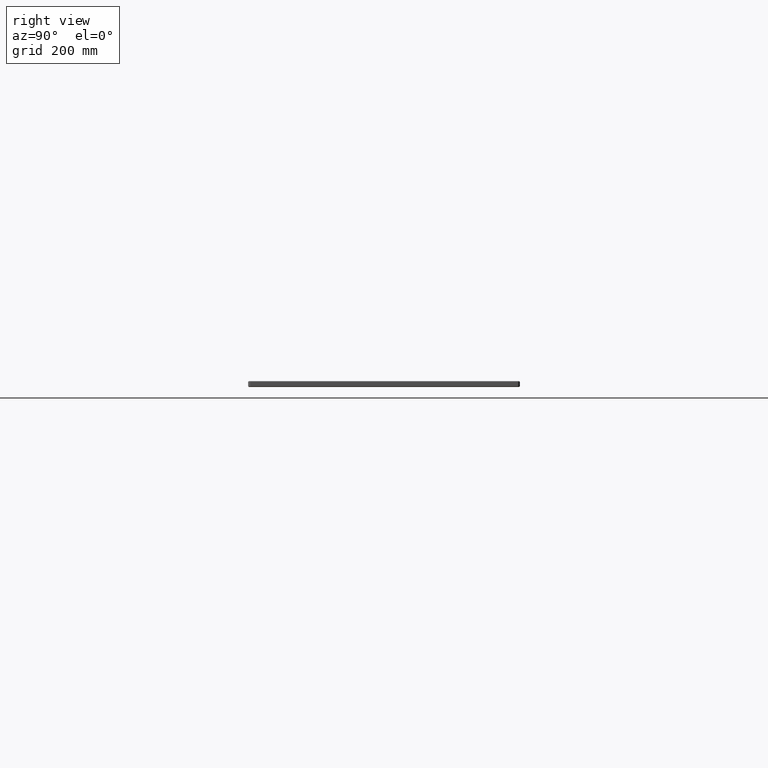
[diagram: clean part render]
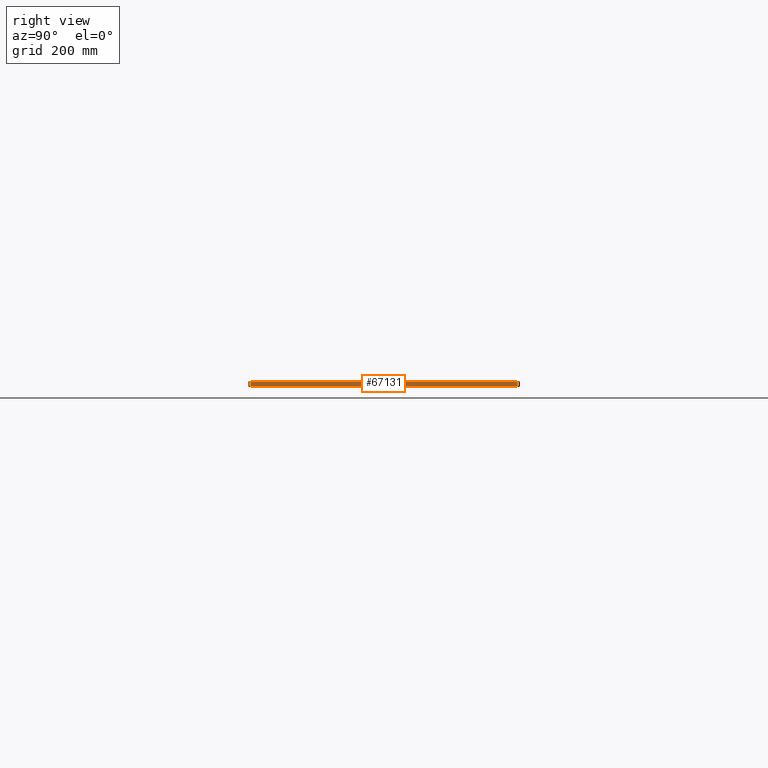
[diagram: same view with one face highlighted and labeled with its STEP entity id]
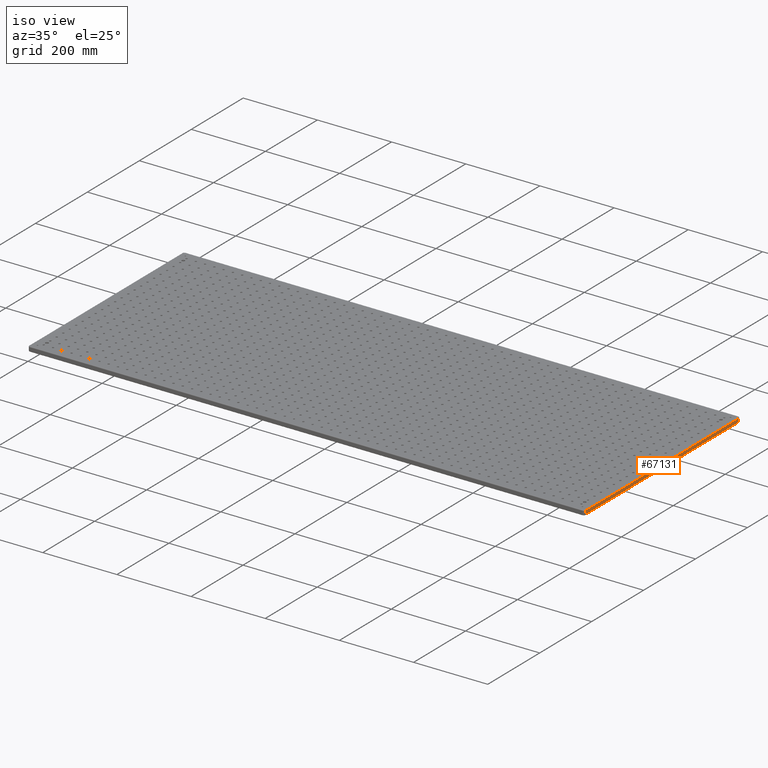
[diagram: same view with one face highlighted and labeled with its STEP entity id]
A machine part, right view. The second image highlights one B-rep face of the part: STEP entity #67131.
A second angle (iso view) of the same face is appended — the face is thin or edge-on in the first view.
In plain terms, the highlighted planar face has unit normal (1, 0, 0).
Its self-contained STEP definition (entity closure, byte-faithful):
#2647 = DIRECTION ( 'NONE',  ( -0.0000000000000000000, -1.000000000000000000, 0.0000000000000000000 ) ) ;
#7411 = ORIENTED_EDGE ( 'NONE', *, *, #91952, .T. ) ;
#8433 = ORIENTED_EDGE ( 'NONE', *, *, #17963, .T. ) ;
#9677 = ORIENTED_EDGE ( 'NONE', *, *, #62842, .T. ) ;
#9866 = VECTOR ( 'NONE', #2647, 1000.000000000000000 ) ;
#17252 = CARTESIAN_POINT ( 'NONE',  ( 1500.000000000000000, 594.9999999999998900, -11.00000000000000000 ) ) ;
#17963 = EDGE_CURVE ( 'NONE', #79031, #59885, #38976, .T. ) ;
#18087 = VECTOR ( 'NONE', #24747, 1000.000000000000000 ) ;
#18985 = FACE_OUTER_BOUND ( 'NONE', #99707, .T. ) ;
#24747 = DIRECTION ( 'NONE',  ( 0.0000000000000000000, 0.0000000000000000000, 1.000000000000000000 ) ) ;
#29241 = CARTESIAN_POINT ( 'NONE',  ( 1500.000000000000000, 4.999999999999999100, -2.000000000000000000 ) ) ;
#30770 = LINE ( 'NONE', #49755, #9866 ) ;
#33861 = DIRECTION ( 'NONE',  ( 1.000000000000000000, 0.0000000000000000000, 0.0000000000000000000 ) ) ;
#38976 = LINE ( 'NONE', #93483, #18087 ) ;
#39962 = VECTOR ( 'NONE', #94241, 1000.000000000000000 ) ;
#47982 = EDGE_CURVE ( 'NONE', #85134, #79031, #60842, .T. ) ;
#49297 = DIRECTION ( 'NONE',  ( 0.0000000000000000000, 0.0000000000000000000, -1.000000000000000000 ) ) ;
#49755 = CARTESIAN_POINT ( 'NONE',  ( 1500.000000000000000, 5.000000000000004400, -2.000000000000000000 ) ) ;
#49982 = VERTEX_POINT ( 'NONE', #29241 ) ;
#50419 = CARTESIAN_POINT ( 'NONE',  ( 1500.000000000000000, 4.999999999999999100, -13.00000000000000000 ) ) ;
#56130 = LINE ( 'NONE', #50419, #68453 ) ;
#58574 = PLANE ( 'NONE',  #75794 ) ;
#59885 = VERTEX_POINT ( 'NONE', #71835 ) ;
#60842 = LINE ( 'NONE', #62621, #39962 ) ;
#61654 = ORIENTED_EDGE ( 'NONE', *, *, #47982, .T. ) ;
#62621 = CARTESIAN_POINT ( 'NONE',  ( 1500.000000000000000, 0.0000000000000000000, -11.00000000000000000 ) ) ;
#62842 = EDGE_CURVE ( 'NONE', #59885, #49982, #30770, .T. ) ;
#67131 = ADVANCED_FACE ( 'NONE', ( #18985 ), #58574, .T. ) ;
#68453 = VECTOR ( 'NONE', #82045, 1000.000000000000000 ) ;
#71835 = CARTESIAN_POINT ( 'NONE',  ( 1500.000000000000000, 594.9999999999998900, -2.000000000000000000 ) ) ;
#74411 = CARTESIAN_POINT ( 'NONE',  ( 1500.000000000000000, 0.0000000000000000000, -13.00000000000000000 ) ) ;
#75794 = AXIS2_PLACEMENT_3D ( 'NONE', #74411, #33861, #49297 ) ;
#79031 = VERTEX_POINT ( 'NONE', #17252 ) ;
#82045 = DIRECTION ( 'NONE',  ( -0.0000000000000000000, -0.0000000000000000000, -1.000000000000000000 ) ) ;
#85134 = VERTEX_POINT ( 'NONE', #94139 ) ;
#91952 = EDGE_CURVE ( 'NONE', #49982, #85134, #56130, .T. ) ;
#93483 = CARTESIAN_POINT ( 'NONE',  ( 1500.000000000000000, 594.9999999999998900, -13.00000000000000000 ) ) ;
#94139 = CARTESIAN_POINT ( 'NONE',  ( 1500.000000000000000, 4.999999999999999100, -11.00000000000000000 ) ) ;
#94241 = DIRECTION ( 'NONE',  ( -0.0000000000000000000, 1.000000000000000000, 0.0000000000000000000 ) ) ;
#99707 = EDGE_LOOP ( 'NONE', ( #7411, #61654, #8433, #9677 ) ) ;